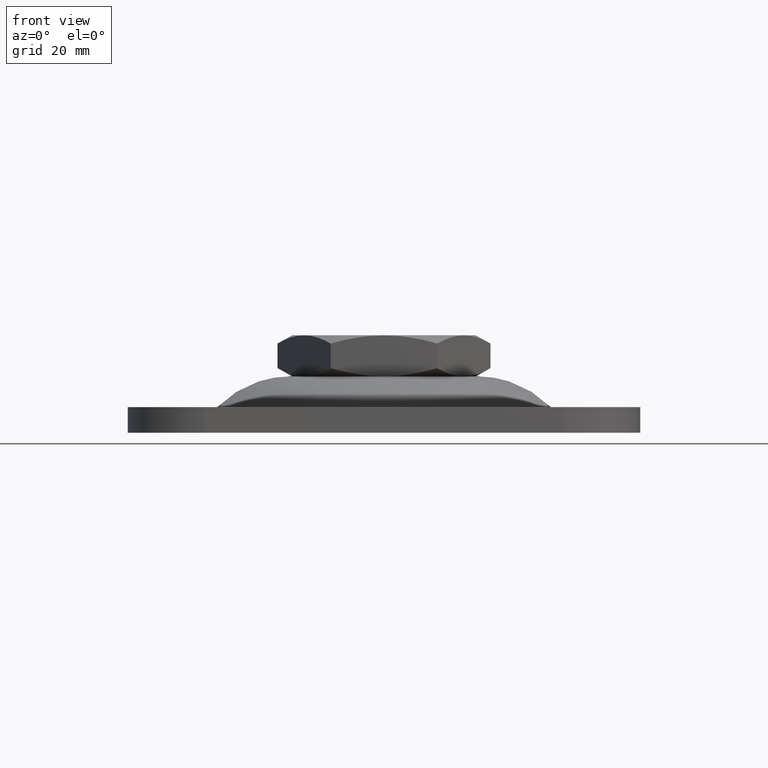
[diagram: clean part render]
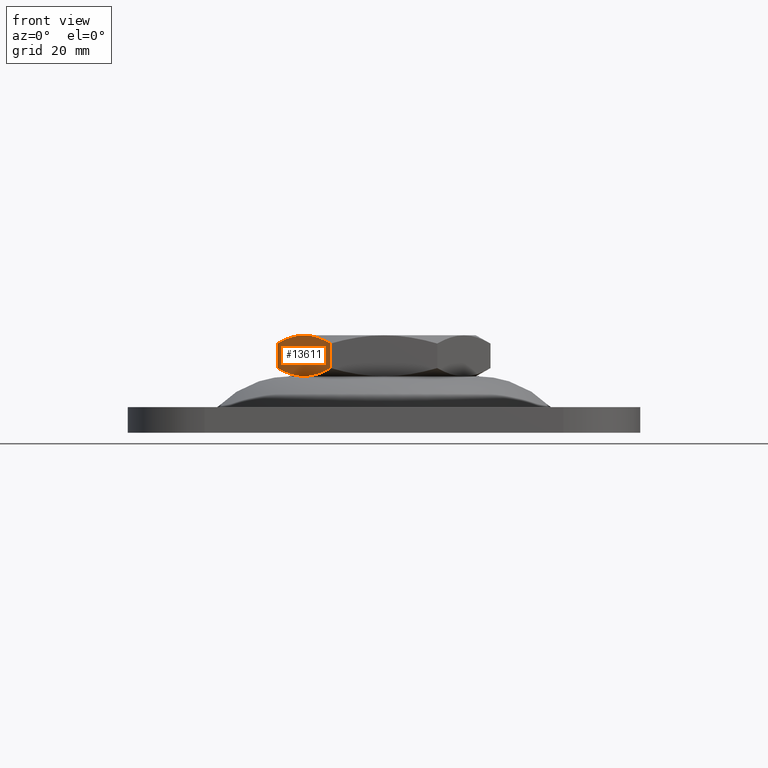
[diagram: same view with one face highlighted and labeled with its STEP entity id]
A machine part, front view. The second image highlights one B-rep face of the part: STEP entity #13611.
In plain terms, the highlighted planar face has unit normal (0.866, 0.5, -0).
Its self-contained STEP definition (entity closure, byte-faithful):
#11 = VERTEX_POINT ( 'NONE', #10574 ) ;
#113 = DIRECTION ( 'NONE',  ( -0.5000000000000002220, 0.8660254037844384856, 0.000000000000000000 ) ) ;
#302 = CARTESIAN_POINT ( 'NONE',  ( -12.09855896486654281, -15.04468117448321784, 18.28737951470527534 ) ) ;
#460 = CARTESIAN_POINT ( 'NONE',  ( -19.93458701958329016, -1.472282454178701627, 12.11693433652695973 ) ) ;
#607 = CARTESIAN_POINT ( 'NONE',  ( -19.08173610902307971, -2.949463562550363349, 18.28596074675776251 ) ) ;
#708 = CARTESIAN_POINT ( 'NONE',  ( -16.03054008682955001, -8.234290096841606399, 18.99057089457783221 ) ) ;
#796 = CARTESIAN_POINT ( 'NONE',  ( -14.48545281793695061, -10.91045974869142121, 11.07476367467994471 ) ) ;
#1068 = DIRECTION ( 'NONE',  ( -0.000000000000000000, -0.000000000000000000, -1.000000000000000000 ) ) ;
#1433 = LINE ( 'NONE', #5821, #3858 ) ;
#1632 = EDGE_CURVE ( 'NONE', #2417, #6053, #13868, .T. ) ;
#1948 = CARTESIAN_POINT ( 'NONE',  ( -17.34799259689864570, -5.952395412842794720, 11.15322181168135707 ) ) ;
#2074 = EDGE_CURVE ( 'NONE', #10585, #11, #1433, .T. ) ;
#2417 = VERTEX_POINT ( 'NONE', #14815 ) ;
#2418 = B_SPLINE_CURVE_WITH_KNOTS ( 'NONE', 3,
 ( #14908, #460, #15175, #1948, #10406, #4367 ),
 .UNSPECIFIED., .F., .F.,
 ( 4, 2, 4 ),
 ( 2.380728322741556499E-07, 0.005257893135091037777, 0.01051554819734980099 ),
 .UNSPECIFIED. ) ;
#2673 = CARTESIAN_POINT ( 'NONE',  ( -15.58845726811988897, -9.000000000000001776, 18.99999999999999645 ) ) ;
#2920 = CARTESIAN_POINT ( 'NONE',  ( -15.58845726811988897, -9.000000000000001776, 18.99999999999999645 ) ) ;
#3139 = ORIENTED_EDGE ( 'NONE', *, *, #2074, .T. ) ;
#3201 = B_SPLINE_CURVE_WITH_KNOTS ( 'NONE', 3,
 ( #3263, #10679, #14065, #5822, #796, #8071, #3366, #8129, #4481, #10465 ),
 .UNSPECIFIED., .F., .F.,
 ( 4, 2, 2, 2, 4 ),
 ( 0.01051554819734980099, 0.01182504667393344776, 0.01313454515051709626, 0.01575354210368438979, 0.02099153601001898378 ),
 .UNSPECIFIED. ) ;
#3263 = CARTESIAN_POINT ( 'NONE',  ( -15.58845726811989607, -9.000000000000005329, 11.00000000000000355 ) ) ;
#3335 = DIRECTION ( 'NONE',  ( -0.000000000000000000, -0.000000000000000000, -1.000000000000000000 ) ) ;
#3366 = CARTESIAN_POINT ( 'NONE',  ( -13.39305315375704275, -12.80255146922220000, 11.29396920543420890 ) ) ;
#3677 = EDGE_LOOP ( 'NONE', ( #3139, #4307, #14095, #14893, #9806, #4165 ) ) ;
#3780 = CARTESIAN_POINT ( 'NONE',  ( -13.82892193934114111, -12.04760458715720084, 18.84677818831863050 ) ) ;
#3858 = VECTOR ( 'NONE', #1068, 1000.000000000000000 ) ;
#4036 = CARTESIAN_POINT ( 'NONE',  ( -20.78460969082653165, 0.000000000000000000, 17.39230484541327115 ) ) ;
#4165 = ORIENTED_EDGE ( 'NONE', *, *, #10450, .T. ) ;
#4307 = ORIENTED_EDGE ( 'NONE', *, *, #8423, .T. ) ;
#4343 = CARTESIAN_POINT ( 'NONE',  ( -16.47166422291241261, -7.470240680701151881, 18.95316891729051889 ) ) ;
#4367 = CARTESIAN_POINT ( 'NONE',  ( -15.58845726811989607, -9.000000000000005329, 11.00000000000000355 ) ) ;
#4399 = CARTESIAN_POINT ( 'NONE',  ( -16.69146171830283620, -7.089540251308574348, 18.92523632532005351 ) ) ;
#4481 = CARTESIAN_POINT ( 'NONE',  ( -11.24020457502483872, -16.53139458858882449, 12.11816001744956672 ) ) ;
#4598 = CARTESIAN_POINT ( 'NONE',  ( -10.39230484541328536, -17.99999999999999289, 12.60769515458672707 ) ) ;
#4692 = EDGE_CURVE ( 'NONE', #11863, #6053, #3201, .T. ) ;
#4700 = VERTEX_POINT ( 'NONE', #7025 ) ;
#4912 = CARTESIAN_POINT ( 'NONE',  ( -10.39230484541325872, -17.99999999999999289, 17.39230484541327115 ) ) ;
#5372 = B_SPLINE_CURVE_WITH_KNOTS ( 'NONE', 3,
 ( #2920, #7993, #708, #4343, #4399, #12733, #11493, #607, #10332, #12685 ),
 .UNSPECIFIED., .F., .F.,
 ( 4, 2, 2, 2, 4 ),
 ( 0.01051554819734978885, 0.01182504667393343561, 0.01313454515051708411, 0.01575354210368438632, 0.02099153601001899419 ),
 .UNSPECIFIED. ) ;
#5821 = CARTESIAN_POINT ( 'NONE',  ( -20.78460969082652454, 5.470030236029019568E-17, 19.00000000000000000 ) ) ;
#5822 = CARTESIAN_POINT ( 'NONE',  ( -14.70525031332735466, -10.52975931929884190, 11.04683108270947756 ) ) ;
#6053 = VERTEX_POINT ( 'NONE', #4598 ) ;
#6125 = EDGE_CURVE ( 'NONE', #2417, #4700, #11625, .T. ) ;
#6191 = CARTESIAN_POINT ( 'NONE',  ( -20.78460969082652454, 5.470030236029019568E-17, 19.00000000000000000 ) ) ;
#6300 = FACE_OUTER_BOUND ( 'NONE', #3677, .T. ) ;
#7025 = CARTESIAN_POINT ( 'NONE',  ( -15.58845726811988897, -9.000000000000001776, 18.99999999999999645 ) ) ;
#7339 = DIRECTION ( 'NONE',  ( 0.8660254037844385966, 0.5000000000000003331, -0.000000000000000000 ) ) ;
#7993 = CARTESIAN_POINT ( 'NONE',  ( -15.80894714424574410, -8.618100331995462327, 18.99999999999999645 ) ) ;
#8071 = CARTESIAN_POINT ( 'NONE',  ( -13.82825457289350091, -12.04876049975177743, 11.18505515745875556 ) ) ;
#8129 = CARTESIAN_POINT ( 'NONE',  ( -12.09517842721670888, -15.05053643744962777, 11.71403925324223216 ) ) ;
#8423 = EDGE_CURVE ( 'NONE', #11, #11863, #2418, .T. ) ;
#8805 = CARTESIAN_POINT ( 'NONE',  ( -11.24232751665649310, -16.52771754582128949, 17.88306566347304383 ) ) ;
#9081 = AXIS2_PLACEMENT_3D ( 'NONE', #6191, #7339, #113 ) ;
#9806 = ORIENTED_EDGE ( 'NONE', *, *, #6125, .T. ) ;
#10332 = CARTESIAN_POINT ( 'NONE',  ( -19.93670996121494809, -1.468605411411161743, 17.88183998255043150 ) ) ;
#10406 = CARTESIAN_POINT ( 'NONE',  ( -16.47372726584778846, -7.466667385518892530, 11.00000000000000355 ) ) ;
#10450 = EDGE_CURVE ( 'NONE', #4700, #10585, #5372, .T. ) ;
#10465 = CARTESIAN_POINT ( 'NONE',  ( -10.39230484541328536, -17.99999999999999289, 12.60769515458672707 ) ) ;
#10574 = CARTESIAN_POINT ( 'NONE',  ( -20.78460969082653165, 0.000000000000000000, 12.60769515458672707 ) ) ;
#10585 = VERTEX_POINT ( 'NONE', #4036 ) ;
#10679 = CARTESIAN_POINT ( 'NONE',  ( -15.36796739199403738, -9.381899668004543003, 11.00000000000000355 ) ) ;
#11091 = PLANE ( 'NONE',  #9081 ) ;
#11493 = CARTESIAN_POINT ( 'NONE',  ( -17.78386138248273696, -5.197448530777792897, 18.70603079456579465 ) ) ;
#11625 = B_SPLINE_CURVE_WITH_KNOTS ( 'NONE', 3,
 ( #4912, #8805, #302, #3780, #14639, #2673 ),
 .UNSPECIFIED., .F., .F.,
 ( 4, 2, 4 ),
 ( 2.380728322769715315E-07, 0.005257893135091033440, 0.01051554819734978885 ),
 .UNSPECIFIED. ) ;
#11863 = VERTEX_POINT ( 'NONE', #13336 ) ;
#11904 = CARTESIAN_POINT ( 'NONE',  ( -10.39230484541325872, -17.99999999999999289, 19.00000000000000000 ) ) ;
#12685 = CARTESIAN_POINT ( 'NONE',  ( -20.78460969082653165, 0.000000000000000000, 17.39230484541327115 ) ) ;
#12733 = CARTESIAN_POINT ( 'NONE',  ( -17.34865996334627880, -5.951239500248215464, 18.81494484254124799 ) ) ;
#13336 = CARTESIAN_POINT ( 'NONE',  ( -15.58845726811989607, -9.000000000000005329, 11.00000000000000355 ) ) ;
#13611 = ADVANCED_FACE ( 'NONE', ( #6300 ), #11091, .F. ) ;
#13868 = LINE ( 'NONE', #11904, #14449 ) ;
#14065 = CARTESIAN_POINT ( 'NONE',  ( -15.14637444941022615, -9.765709903158390048, 11.00942910542216246 ) ) ;
#14095 = ORIENTED_EDGE ( 'NONE', *, *, #4692, .T. ) ;
#14449 = VECTOR ( 'NONE', #3335, 1000.000000000000000 ) ;
#14639 = CARTESIAN_POINT ( 'NONE',  ( -14.70318727039198947, -10.53333261448110569, 19.00000000000000000 ) ) ;
#14815 = CARTESIAN_POINT ( 'NONE',  ( -10.39230484541325872, -17.99999999999999289, 17.39230484541327115 ) ) ;
#14893 = ORIENTED_EDGE ( 'NONE', *, *, #1632, .F. ) ;
#14908 = CARTESIAN_POINT ( 'NONE',  ( -20.78460969082653165, 0.000000000000000000, 12.60769515458672707 ) ) ;
#15175 = CARTESIAN_POINT ( 'NONE',  ( -19.07835557137324756, -2.955318825516775494, 11.71262048529472999 ) ) ;